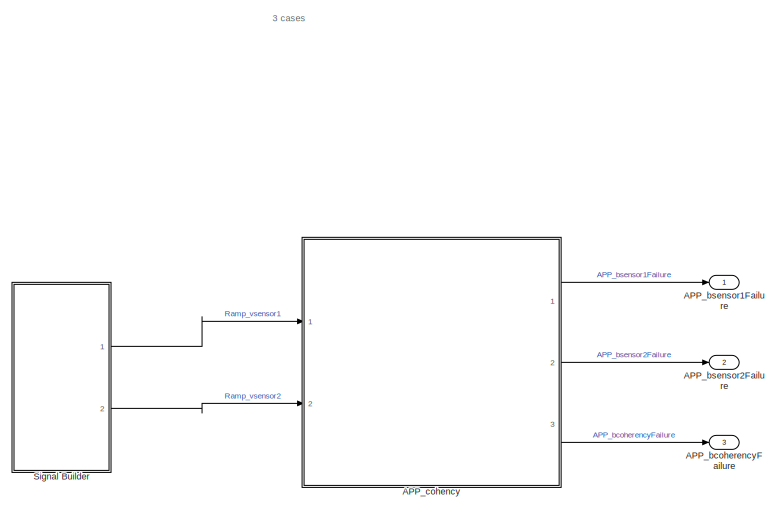
[diagram: root canvas - part 1/2, left side, full height]
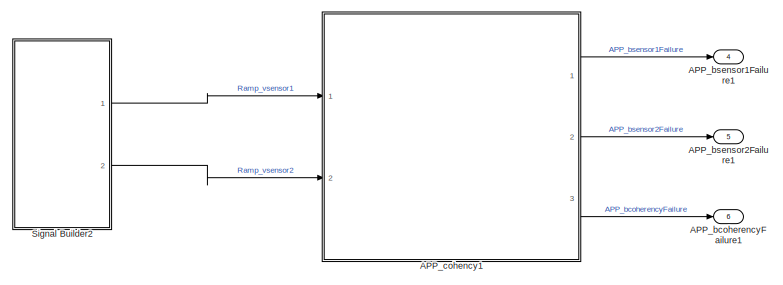
[diagram: root canvas - part 2/2, bottom right region]
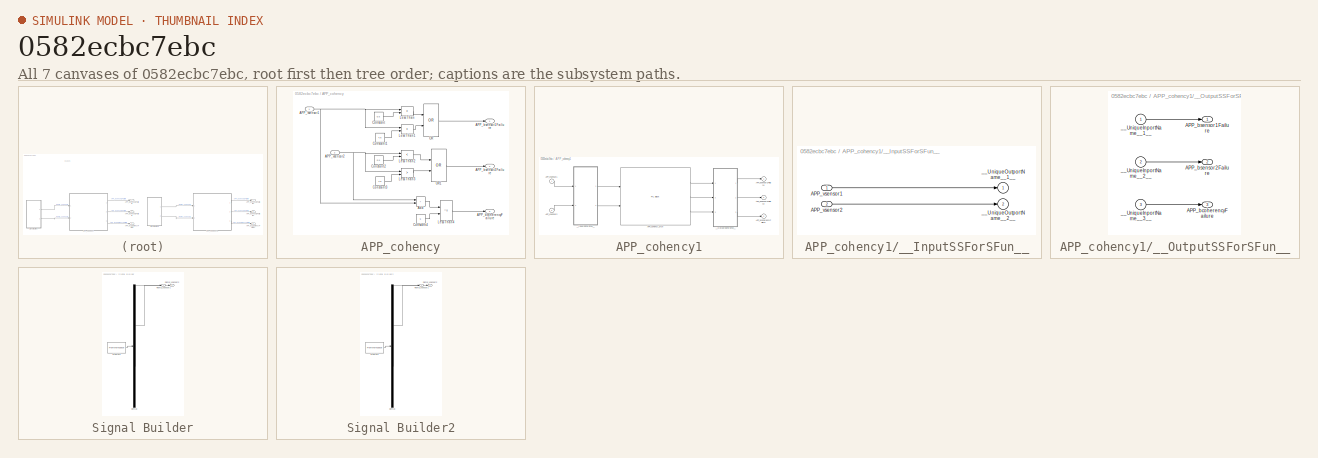
[diagram: thumbnail index - all 7 canvases of the model, root first then tree order]
MODEL slx_0582ecbc7ebc
KIND model
CONFIG AbsTol = auto
CONFIG EnableMultiTasking = off
CONFIG FixedStep = 1e-3
CONFIG MaxStep = auto
CONFIG MinStep = auto
CONFIG RelTol = 1e-3
CONFIG SampleTimeConstraint = Unconstrained
CONFIG SolverName = FixedStepDiscrete
CONFIG StartTime = 0.0
CONFIG StopTime = 10.0
BLOCK [Outport] APP_bcoherencyFailure
  Port = 3
BLOCK [Outport] APP_bcoherencyFailure1
  Port = 6
BLOCK [Outport] APP_bsensor1Failure
BLOCK [Outport] APP_bsensor1Failure1
  Port = 4
BLOCK [Outport] APP_bsensor2Failure
  Port = 2
BLOCK [Outport] APP_bsensor2Failure1
  Port = 5
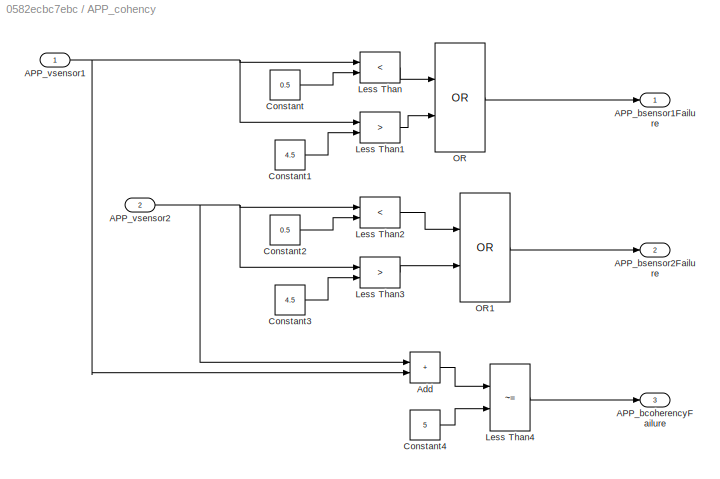
BLOCK [SubSystem] APP_cohency
  Ports = [2, 3]
  RequestExecContextInheritance = off
  TreatAsAtomicUnit = on
BLOCK [Outport] APP_cohency/APP_bcoherencyFailure
  Port = 3
BLOCK [Outport] APP_cohency/APP_bsensor1Failure
BLOCK [Outport] APP_cohency/APP_bsensor2Failure
  Port = 2
BLOCK [Inport] APP_cohency/APP_vsensor1
BLOCK [Inport] APP_cohency/APP_vsensor2
  Port = 2
BLOCK [Sum] APP_cohency/Add
  IconShape = rectangular
  Ports = [2, 1]
BLOCK [Constant] APP_cohency/Constant
  Value = 0.5
BLOCK [Constant] APP_cohency/Constant1
  Value = 4.5
BLOCK [Constant] APP_cohency/Constant2
  Value = 0.5
BLOCK [Constant] APP_cohency/Constant3
  Value = 4.5
BLOCK [Constant] APP_cohency/Constant4
  Value = 5
BLOCK [RelationalOperator] APP_cohency/Less Than
  InputSameDT = off
  Operator = <
  OutDataTypeStr = boolean
  Ports = [2, 1]
  RndMeth = Simplest
BLOCK [RelationalOperator] APP_cohency/Less Than1
  InputSameDT = off
  Operator = >
  OutDataTypeStr = boolean
  Ports = [2, 1]
  RndMeth = Simplest
BLOCK [RelationalOperator] APP_cohency/Less Than2
  InputSameDT = off
  Operator = <
  OutDataTypeStr = boolean
  Ports = [2, 1]
  RndMeth = Simplest
BLOCK [RelationalOperator] APP_cohency/Less Than3
  InputSameDT = off
  Operator = >
  OutDataTypeStr = boolean
  Ports = [2, 1]
  RndMeth = Simplest
BLOCK [RelationalOperator] APP_cohency/Less Than4
  InputSameDT = off
  Operator = ~=
  OutDataTypeStr = boolean
  Ports = [2, 1]
  RndMeth = Simplest
BLOCK [Logic] APP_cohency/OR
  AllPortsSameDT = off
  Operator = OR
  OutDataTypeStr = boolean
  Ports = [2, 1]
BLOCK [Logic] APP_cohency/OR1
  AllPortsSameDT = off
  Operator = OR
  OutDataTypeStr = boolean
  Ports = [2, 1]
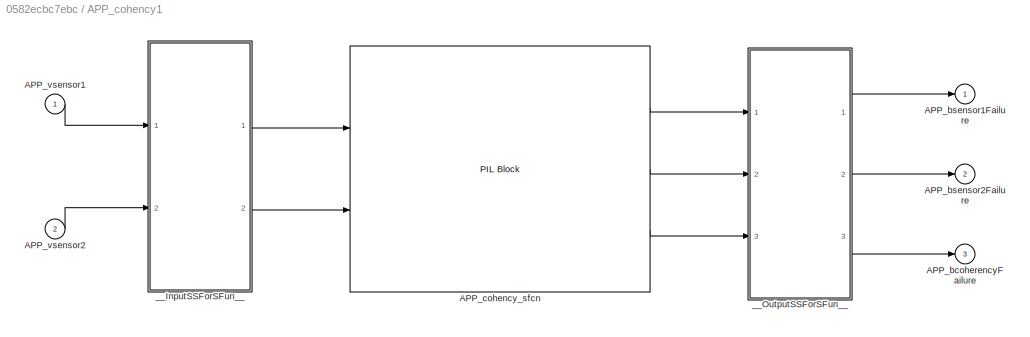
BLOCK [SubSystem] APP_cohency1
  DialogController = pil_create_dialog
  LoadFcn = try\n   if ~strcmp(rtw.pil.getPILVersion, '9.10 (R2021a)_15')\n      set_param(gcb, 'DialogController', '');\n      set_param(gcb, 'DialogControllerArgs', '');\n   end\ncatch e\n      set_param(gcb, 'DialogController', '');\n      set_param(gcb, 'DialogControllerArgs', '');\nend
  Ports = [2, 3]
  RequestExecContextInheritance = off
  Tag = __SL_testing_harness_stub_
BLOCK [Outport] APP_cohency1/APP_bcoherencyFailure
  Port = 3
BLOCK [Outport] APP_cohency1/APP_bsensor1Failure
BLOCK [Outport] APP_cohency1/APP_bsensor2Failure
  Port = 2
BLOCK [Reference] APP_cohency1/APP_cohency_sfcn  REF=pil_lib/PIL Block
  Ports = [2, 3]
  SourceBlock = pil_lib/PIL Block
  SourceProductBaseCode = RT
  SourceType = XILBlock
BLOCK [Inport] APP_cohency1/APP_vsensor1
BLOCK [Inport] APP_cohency1/APP_vsensor2
  Port = 2
BLOCK [SubSystem] APP_cohency1/__InputSSForSFun__
  PermitHierarchicalResolution = ExplicitOnly
  Ports = [2, 2]
  RequestExecContextInheritance = off
BLOCK [Inport] APP_cohency1/__InputSSForSFun__/APP_vsensor1
BLOCK [Inport] APP_cohency1/__InputSSForSFun__/APP_vsensor2
  Port = 2
BLOCK [Outport] APP_cohency1/__InputSSForSFun__/__UniqueOutportName__1__
BLOCK [Outport] APP_cohency1/__InputSSForSFun__/__UniqueOutportName__2__
  Port = 2
BLOCK [SubSystem] APP_cohency1/__OutputSSForSFun__
  PermitHierarchicalResolution = ExplicitOnly
  Ports = [3, 3]
  RequestExecContextInheritance = off
BLOCK [Outport] APP_cohency1/__OutputSSForSFun__/APP_bcoherencyFailure
  Port = 3
BLOCK [Outport] APP_cohency1/__OutputSSForSFun__/APP_bsensor1Failure
BLOCK [Outport] APP_cohency1/__OutputSSForSFun__/APP_bsensor2Failure
  Port = 2
BLOCK [Inport] APP_cohency1/__OutputSSForSFun__/__UniqueInportName__1__
BLOCK [Inport] APP_cohency1/__OutputSSForSFun__/__UniqueInportName__2__
  Port = 2
BLOCK [Inport] APP_cohency1/__OutputSSForSFun__/__UniqueInportName__3__
  Port = 3
BLOCK [SubSystem] Signal Builder
  ClipboardFcn = sigbuilder_block('clipboard');
  CloseFcn = sigbuilder_block('close');
  ContinueFcn = sigbuilder_block('continue');
  CopyFcn = sigbuilder_block('copy');
  DeleteFcn = sigbuilder_block('delete');
  LoadFcn = sigbuilder_block('load');
  MaskHideContents = on
  ModelCloseFcn = sigbuilder_block('modelClose');
  NameChangeFcn = sigbuilder_block('namechange');
  OpenFcn = sigbuilder_block('open',[437.6 146.4 550.4 400.2 ]);
  PauseFcn = sigbuilder_block('pause');
  Ports = [0, 2]
  PreSaveFcn = sigbuilder_block('preSave');
  RequestExecContextInheritance = off
  StartFcn = sigbuilder_block('start');
  StopFcn = sigbuilder_block('stop');
  Tag = STV Subsys
BLOCK [Demux] Signal Builder/Demux
  DisplayOption = none
  Outputs = 2
  Ports = [1, 2]
  Tag = STV Demux
BLOCK [FromWorkspace] Signal Builder/FromWs
  Tag = STV FromWs
  VariableName = tuvar
BLOCK [Outport] Signal Builder/Ramp_vsensor1
  Tag = STV Outport
BLOCK [Outport] Signal Builder/Ramp_vsensor2
  Port = 2
  Tag = STV Outport
BLOCK [SubSystem] Signal Builder2
  ClipboardFcn = sigbuilder_block('clipboard');
  CloseFcn = sigbuilder_block('close');
  ContinueFcn = sigbuilder_block('continue');
  CopyFcn = sigbuilder_block('copy');
  DeleteFcn = sigbuilder_block('delete');
  LoadFcn = sigbuilder_block('load');
  MaskHideContents = on
  ModelCloseFcn = sigbuilder_block('modelClose');
  NameChangeFcn = sigbuilder_block('namechange');
  OpenFcn = sigbuilder_block('open',[437.6 146.4 550.4 400.2 ]);
  PauseFcn = sigbuilder_block('pause');
  Ports = [0, 2]
  PreSaveFcn = sigbuilder_block('preSave');
  RequestExecContextInheritance = off
  StartFcn = sigbuilder_block('start');
  StopFcn = sigbuilder_block('stop');
  Tag = STV Subsys
BLOCK [Demux] Signal Builder2/Demux
  DisplayOption = none
  Outputs = 2
  Ports = [1, 2]
  Tag = STV Demux
BLOCK [FromWorkspace] Signal Builder2/FromWs
  Tag = STV FromWs
  VariableName = tuvar
BLOCK [Outport] Signal Builder2/Ramp_vsensor1
  Tag = STV Outport
BLOCK [Outport] Signal Builder2/Ramp_vsensor2
  Port = 2
  Tag = STV Outport
ANNOTATION (root): 3 cases
NET APP_cohency/APP_vsensor1:1 -> APP_cohency/Add:2, APP_cohency/Less Than1:1, APP_cohency/Less Than:1
NET APP_cohency/APP_vsensor2:1 -> APP_cohency/Add:1, APP_cohency/Less Than2:1, APP_cohency/Less Than3:1
LINE APP_cohency/Add:1 -> APP_cohency/Less Than4:1
LINE APP_cohency/Constant1:1 -> APP_cohency/Less Than1:2
LINE APP_cohency/Constant2:1 -> APP_cohency/Less Than2:2
LINE APP_cohency/Constant3:1 -> APP_cohency/Less Than3:2
LINE APP_cohency/Constant4:1 -> APP_cohency/Less Than4:2
LINE APP_cohency/Constant:1 -> APP_cohency/Less Than:2
LINE APP_cohency/Less Than1:1 -> APP_cohency/OR:2
LINE APP_cohency/Less Than2:1 -> APP_cohency/OR1:1
LINE APP_cohency/Less Than3:1 -> APP_cohency/OR1:2
LINE APP_cohency/Less Than4:1 -> APP_cohency/APP_bcoherencyFailure:1
LINE APP_cohency/Less Than:1 -> APP_cohency/OR:1
LINE APP_cohency/OR1:1 -> APP_cohency/APP_bsensor2Failure:1
LINE APP_cohency/OR:1 -> APP_cohency/APP_bsensor1Failure:1
LINE APP_cohency1:1 -> APP_bsensor1Failure1:1
LINE APP_cohency1:2 -> APP_bsensor2Failure1:1
LINE APP_cohency1:3 -> APP_bcoherencyFailure1:1
LINE APP_cohency:1 -> APP_bsensor1Failure:1
LINE APP_cohency:2 -> APP_bsensor2Failure:1
LINE APP_cohency:3 -> APP_bcoherencyFailure:1
LINE Signal Builder2:1 -> APP_cohency1:1
LINE Signal Builder2:2 -> APP_cohency1:2
LINE Signal Builder:1 -> APP_cohency:1
LINE Signal Builder:2 -> APP_cohency:2
note: NET lines group one-source signal fan-out (src -> all destinations, sorted); 1:1 wires keep LINE
